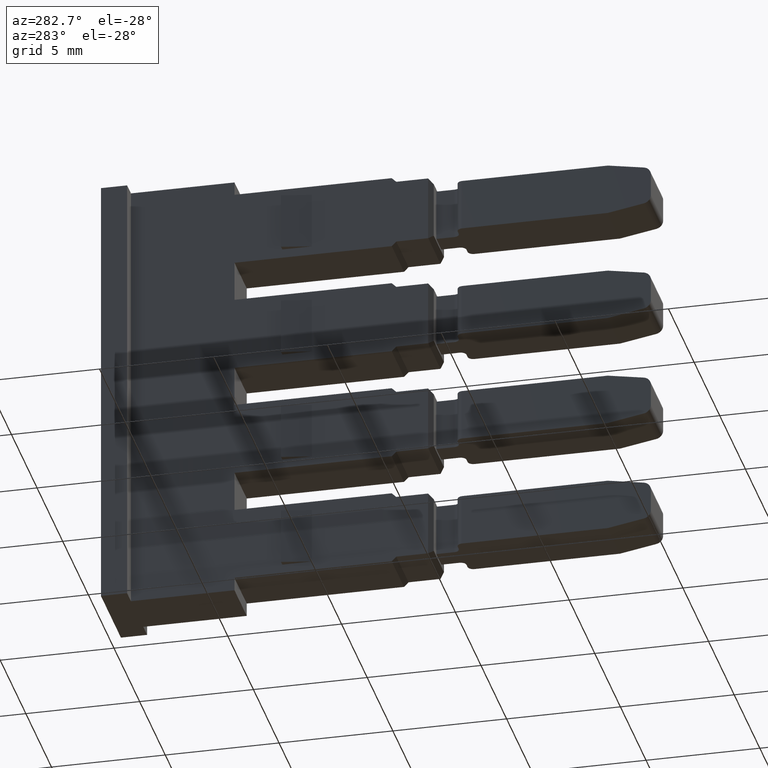
[diagram: clean part render]
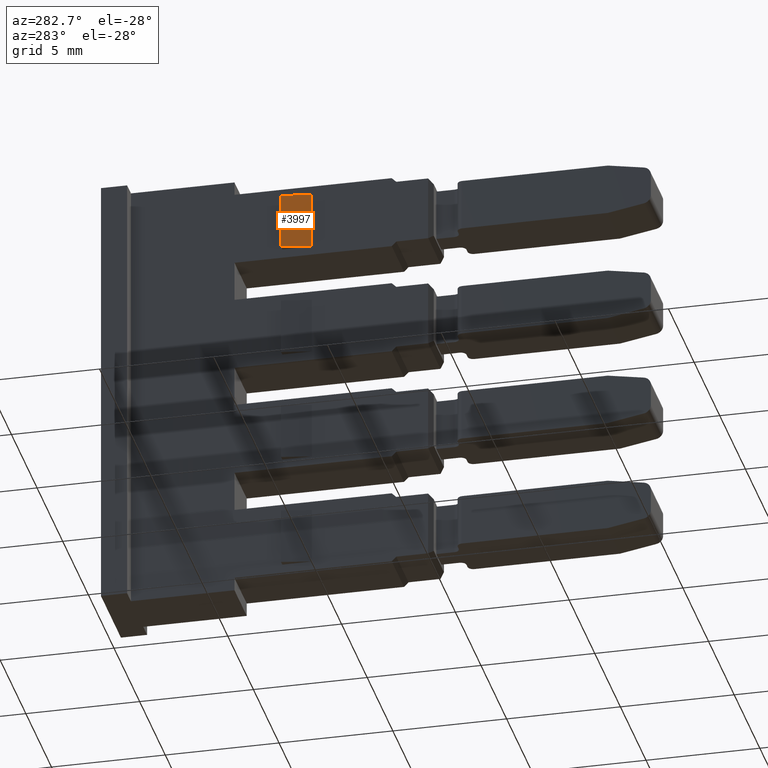
[diagram: same view with one face highlighted and labeled with its STEP entity id]
A machine part, auxiliary view. The second image highlights one B-rep face of the part: STEP entity #3997.
In plain terms, the highlighted planar face has unit normal (0.982, 0.1888, -0).
Its self-contained STEP definition (entity closure, byte-faithful):
#9 = EDGE_LOOP ( 'NONE', ( #4286, #4250, #4262, #4360 ) ) ;
#173 = VERTEX_POINT ( 'NONE', #4816 ) ;
#179 = VERTEX_POINT ( 'NONE', #4821 ) ;
#338 = VERTEX_POINT ( 'NONE', #5021 ) ;
#349 = VERTEX_POINT ( 'NONE', #4998 ) ;
#707 = VECTOR ( 'NONE', #5133, 1000.000000000000000 ) ;
#950 = VECTOR ( 'NONE', #2857, 1000.000000000000100 ) ;
#969 = VECTOR ( 'NONE', #2909, 1000.000000000000100 ) ;
#1031 = VECTOR ( 'NONE', #3163, 1000.000000000000000 ) ;
#1302 = AXIS2_PLACEMENT_3D ( 'NONE', #1581, #1627, #1582 ) ;
#1581 = CARTESIAN_POINT ( 'NONE',  ( 1456.589907072214100, 981.8926795374923100, 33.17382022962177500 ) ) ;
#1582 = DIRECTION ( 'NONE',  ( -0.1888473936501898200, 0.9820064469806346600, 0.0000000000000000000 ) ) ;
#1605 = PLANE ( 'NONE',  #1302 ) ;
#1618 = FACE_OUTER_BOUND ( 'NONE', #9, .T. ) ;
#1627 = DIRECTION ( 'NONE',  ( 0.9820064469806347700, 0.1888473936501898500, -1.684263315827307500E-015 ) ) ;
#2855 = LINE ( 'NONE', #2877, #950 ) ;
#2857 = DIRECTION ( 'NONE',  ( 0.1888473936501898200, -0.9820064469806346600, -0.0000000000000000000 ) ) ;
#2877 = CARTESIAN_POINT ( 'NONE',  ( 1456.589907072214100, 981.8926795374923100, 31.85000000013441800 ) ) ;
#2909 = DIRECTION ( 'NONE',  ( -0.1888473936501898200, 0.9820064469806346600, 0.0000000000000000000 ) ) ;
#2918 = LINE ( 'NONE', #2934, #969 ) ;
#2934 = CARTESIAN_POINT ( 'NONE',  ( 1456.589907072214100, 981.8926795374923100, 29.35000000013441500 ) ) ;
#3135 = LINE ( 'NONE', #3144, #1031 ) ;
#3144 = CARTESIAN_POINT ( 'NONE',  ( 1456.589907072214100, 981.8926795374923100, 33.17382022962177500 ) ) ;
#3163 = DIRECTION ( 'NONE',  ( 1.653957434555396800E-015, 3.180687374146135400E-016, 1.000000000000000000 ) ) ;
#3462 = EDGE_CURVE ( 'NONE', #173, #179, #5156, .T. ) ;
#3674 = EDGE_CURVE ( 'NONE', #349, #173, #2855, .T. ) ;
#3693 = EDGE_CURVE ( 'NONE', #179, #338, #2918, .T. ) ;
#3768 = EDGE_CURVE ( 'NONE', #338, #349, #3135, .T. ) ;
#3997 = ADVANCED_FACE ( 'NONE', ( #1618 ), #1605, .F. ) ;
#4250 = ORIENTED_EDGE ( 'NONE', *, *, #3693, .F. ) ;
#4262 = ORIENTED_EDGE ( 'NONE', *, *, #3462, .F. ) ;
#4286 = ORIENTED_EDGE ( 'NONE', *, *, #3768, .F. ) ;
#4360 = ORIENTED_EDGE ( 'NONE', *, *, #3674, .F. ) ;
#4816 = CARTESIAN_POINT ( 'NONE',  ( 1456.839907072214100, 980.5926795374923600, 31.85000000013441100 ) ) ;
#4821 = CARTESIAN_POINT ( 'NONE',  ( 1456.839907072214100, 980.5926795374925900, 29.35000000013441500 ) ) ;
#4998 = CARTESIAN_POINT ( 'NONE',  ( 1456.589907072214100, 981.8926795374923100, 31.85000000013441800 ) ) ;
#5021 = CARTESIAN_POINT ( 'NONE',  ( 1456.589907072214100, 981.8926795374923100, 29.35000000013441500 ) ) ;
#5133 = DIRECTION ( 'NONE',  ( -1.715124499442844000E-015, -1.097884403469707200E-029, -1.000000000000000000 ) ) ;
#5136 = CARTESIAN_POINT ( 'NONE',  ( 1456.839907072213900, 980.5926795374923600, -30.13084736897824800 ) ) ;
#5156 = LINE ( 'NONE', #5136, #707 ) ;